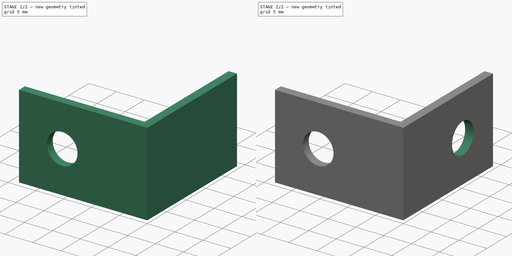
[diagram: build sequence overview — one tinted view per stage of 2, left to right]
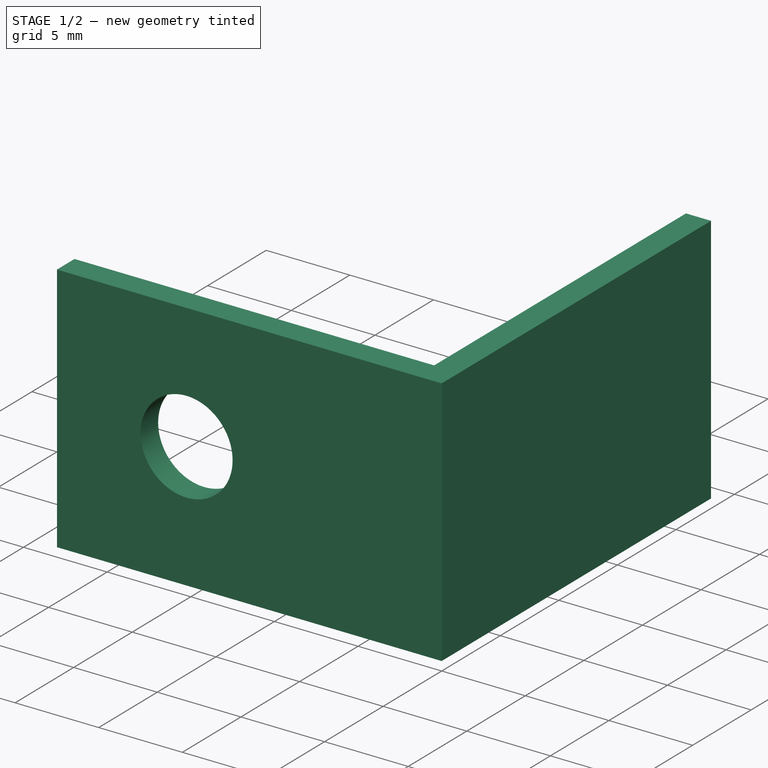
[diagram: stage 1 of 2 — iso view after this stage's code; geometry added in this stage tinted green]
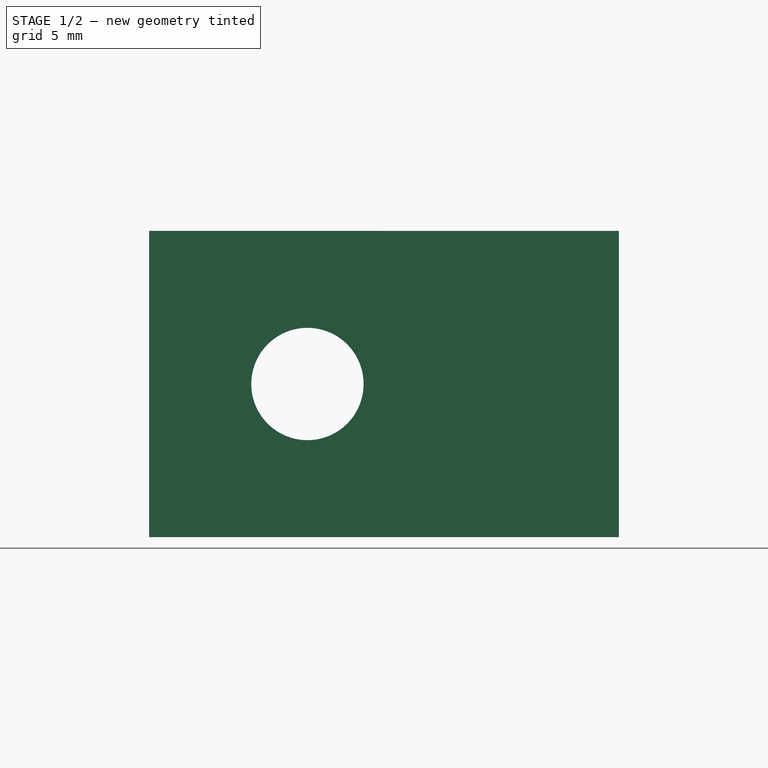
[diagram: stage 1 of 2 — front view after this stage's code; geometry added in this stage tinted green]
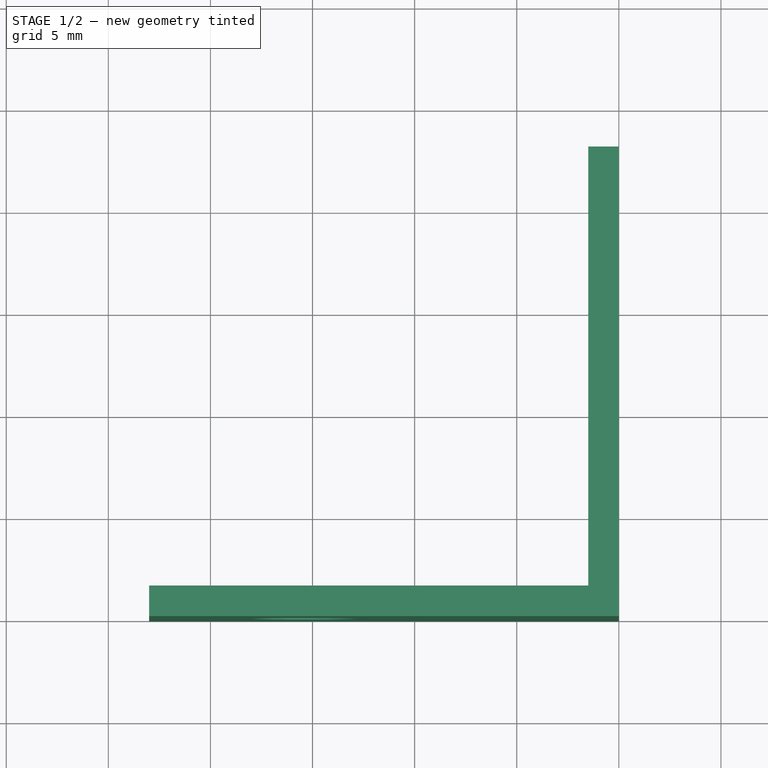
[diagram: stage 1 of 2 — top view after this stage's code; geometry added in this stage tinted green]
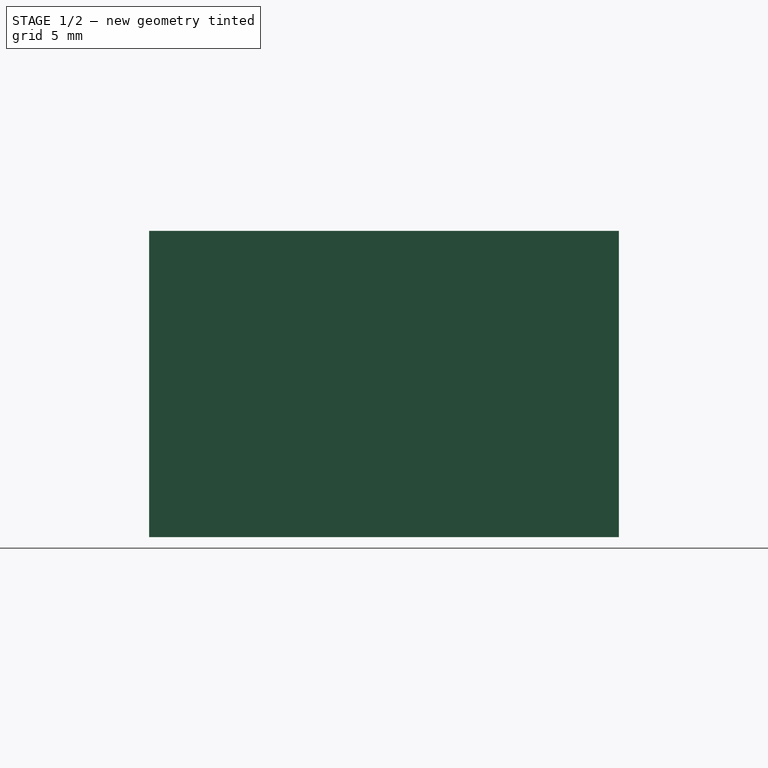
[diagram: stage 1 of 2 — right view after this stage's code; geometry added in this stage tinted green]
FCSTD DOCUMENT  (FreeCAD 0.16R6706 (Git))
Label: Cantoneira Pequena
License: All rights reserved
LicenseURL: http://en.wikipedia.org/wiki/All_rights_reserved
objects: Sketcher::SketchObject×3, PartDesign::Pocket×2, PartDesign::Pad×1
note: 9 computed .brp shape members not serialized (recipe doc carries the construction recipe); baked Part::Feature solids carry a one-line shape summary decoded from their .brp

FEATURE [Sketcher::SketchObject] Sketch
  sketch-geometry (6):
    g0: LineSegment StartX=-1.5 StartY=1.5 StartZ=0 EndX=-23 EndY=1.5 EndZ=0
    g1: LineSegment StartX=-23 StartY=1.5 StartZ=0 EndX=-23 EndY=0 EndZ=0
    g2: LineSegment StartX=-23 StartY=0 StartZ=0 EndX=0 EndY=0 EndZ=0
    g3: LineSegment StartX=0 StartY=0 StartZ=0 EndX=0 EndY=23 EndZ=0
    g4: LineSegment StartX=0 StartY=23 StartZ=0 EndX=-1.5 EndY=23 EndZ=0
    g5: LineSegment StartX=-1.5 StartY=23 StartZ=0 EndX=-1.5 EndY=1.5 EndZ=0
  constraints (17):
    c: Coincident(g0,g1)
    c: Coincident(g1,g2)
    c: Coincident(g2,g3)
    c: Coincident(g3,g4)
    c: Coincident(g4,g5)
    c: Coincident(g0,g5)
    c: Vertical(g5)
    c: Vertical(g3)
    c: Vertical(g1)
    c: Horizontal(g4)
    c: Horizontal(g0)
    c: Horizontal(g2)
    c: Coincident(g2,g-1)
    c: DistanceX(g2,g2) = 23
    c: Equal(g2,g3)
    c: DistanceY(g1,g1) = 1.5
    c: Equal(g1,g4)
FEATURE [PartDesign::Pad] Pad
  Length = 15
  Length2 = 100
  Sketch = -> Sketch
  Type = 0
FEATURE [Sketcher::SketchObject] Sketch001
  ExternalGeometry = -> [Pad]
  Placement = pos=(0,1.5,0) rot=(0,0.707107,0.707107;3.14159rad)
  Support = -> Pad [Face1]
  sketch-geometry (2):
    g0: LineSegment [constr] StartX=15.25 StartY=7.5 StartZ=0 EndX=23 EndY=7.5 EndZ=0
    g1: Circle CenterX=15.25 CenterY=7.5 CenterZ=0 NormalX=0 NormalY=0 NormalZ=1 Radius=2.75
  constraints (5):
    c: Horizontal(g0)
    c: Symmetric(g-3,g-3,g0)
    c: DistanceX(g0,g0) = 7.75
    c: Radius(g1) = 2.75
    c: Coincident(g1,g0)
FEATURE [PartDesign::Pocket] Pocket
  Length = 5
  Sketch = -> Sketch001
  Type = 2
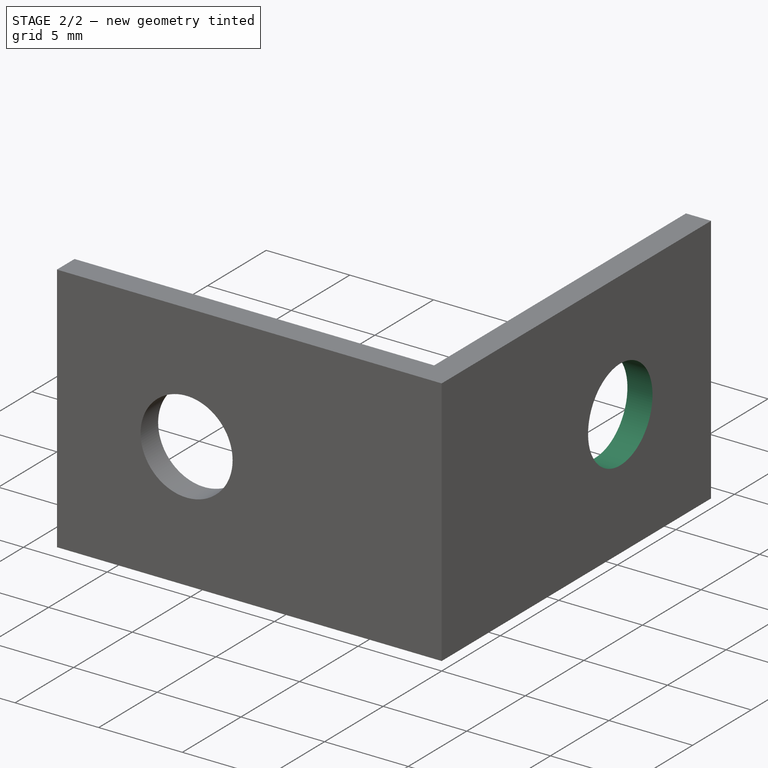
[diagram: stage 2 of 2 — iso view after this stage's code; geometry added in this stage tinted green]
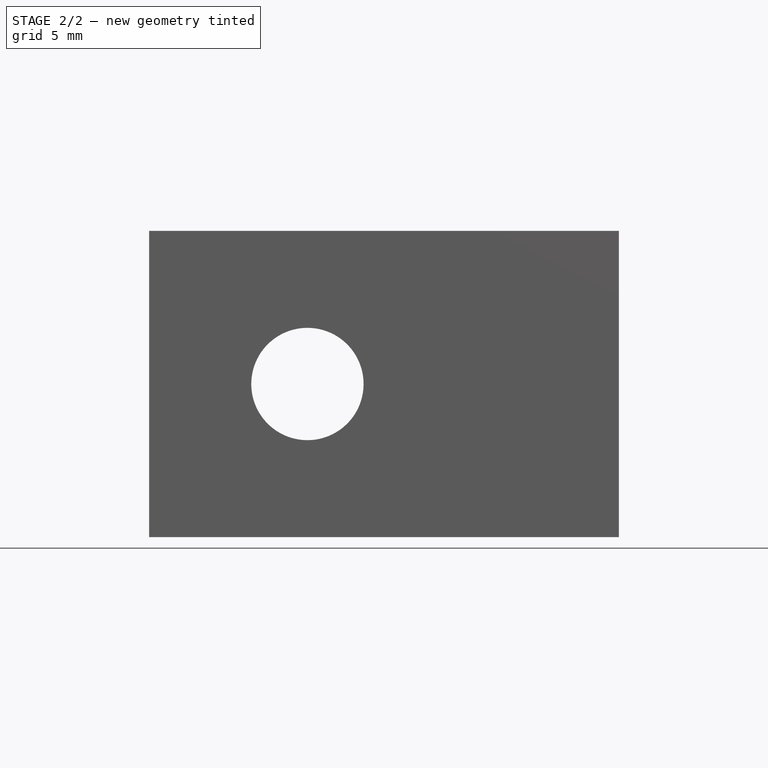
[diagram: stage 2 of 2 — front view after this stage's code; geometry added in this stage tinted green]
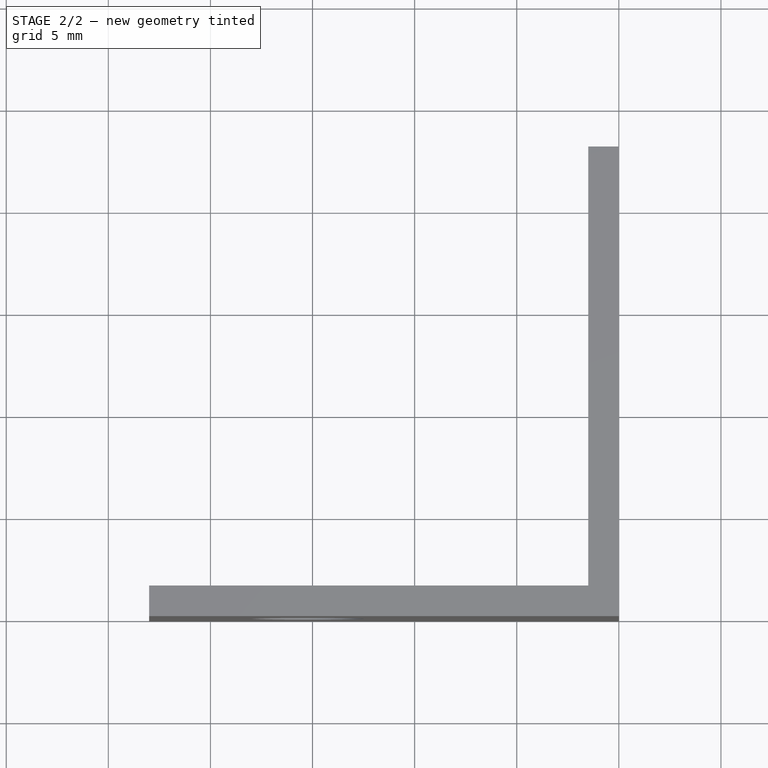
[diagram: stage 2 of 2 — top view after this stage's code; geometry added in this stage tinted green]
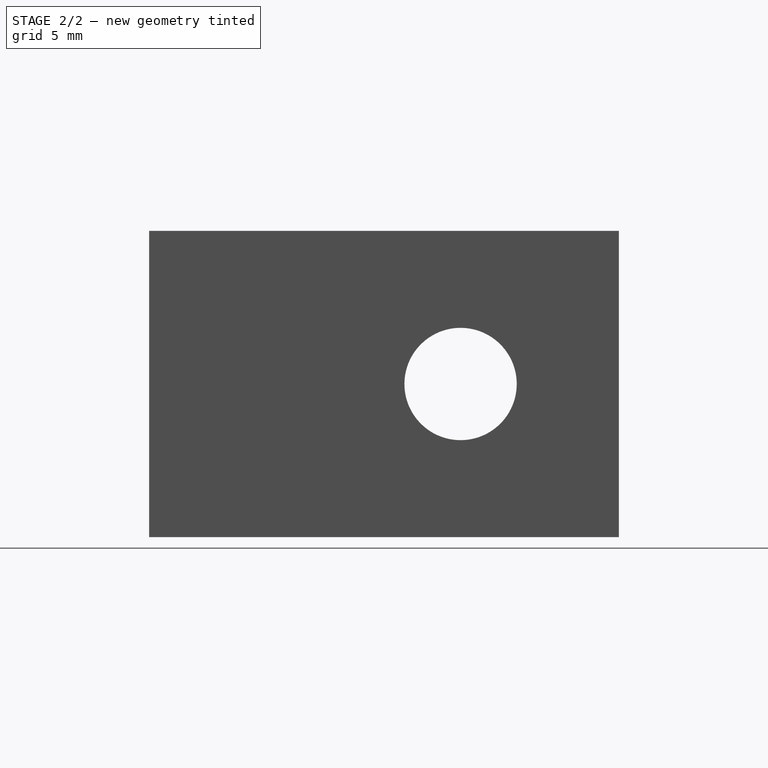
[diagram: stage 2 of 2 — right view after this stage's code; geometry added in this stage tinted green]
FEATURE [Sketcher::SketchObject] Sketch002
  ExternalGeometry = -> [Pocket]
  Placement = pos=(-1.5,0,0) rot=(0.57735,-0.57735,-0.57735;2.0944rad)
  Support = -> Pocket [Face2]
  sketch-geometry (2):
    g0: LineSegment [constr] StartX=-23 StartY=7.5 StartZ=0 EndX=-15.25 EndY=7.5 EndZ=0
    g1: Circle CenterX=-15.25 CenterY=7.5 CenterZ=0 NormalX=0 NormalY=0 NormalZ=1 Radius=2.75
  constraints (5):
    c: Horizontal(g0)
    c: DistanceX(g0,g0) = 7.75
    c: Symmetric(g-3,g-3,g0)
    c: Radius(g1) = 2.75
    c: Coincident(g0,g1)
FEATURE [PartDesign::Pocket] Pocket001
  Length = 5
  Sketch = -> Sketch002
  Type = 1
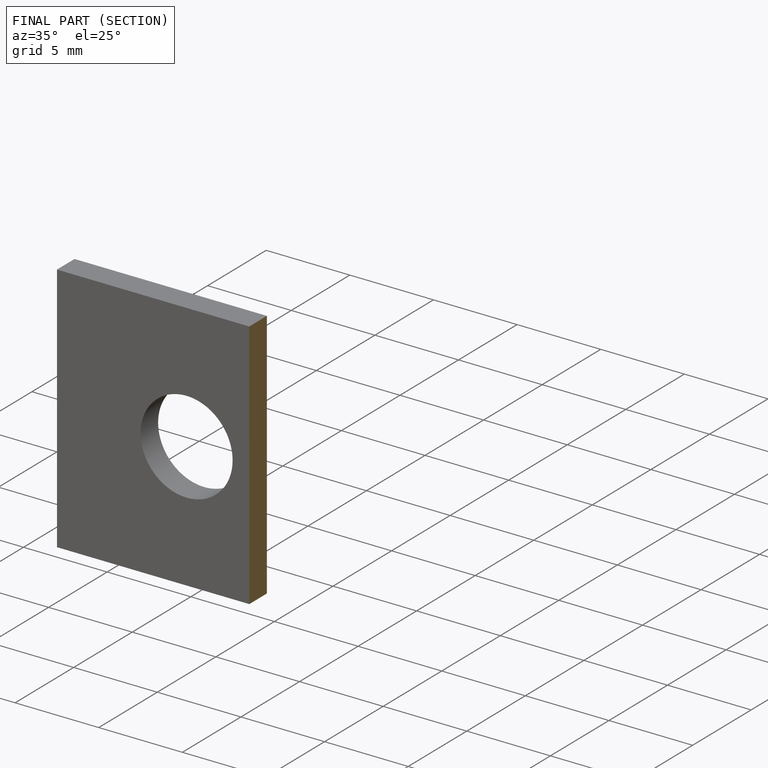
[diagram: finished part — half-section view (interior)]
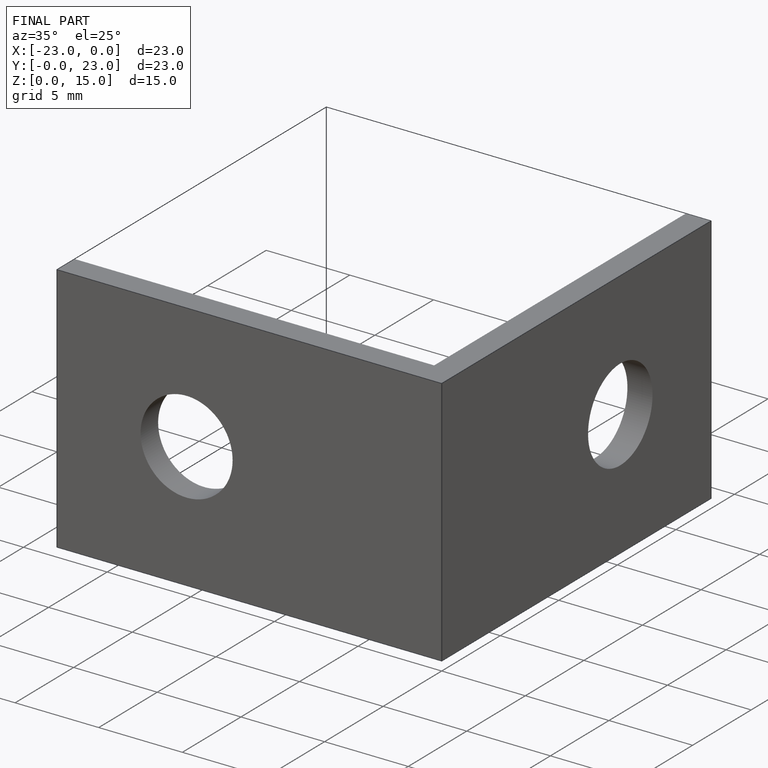
[diagram: finished part — iso view with bounding-box wireframe]
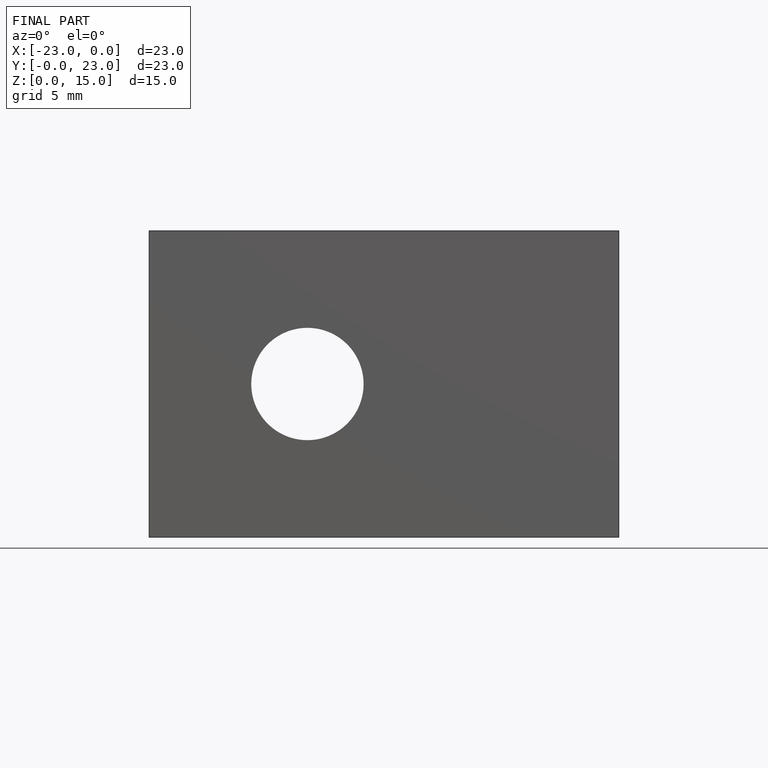
[diagram: finished part — front view with bounding-box wireframe]
